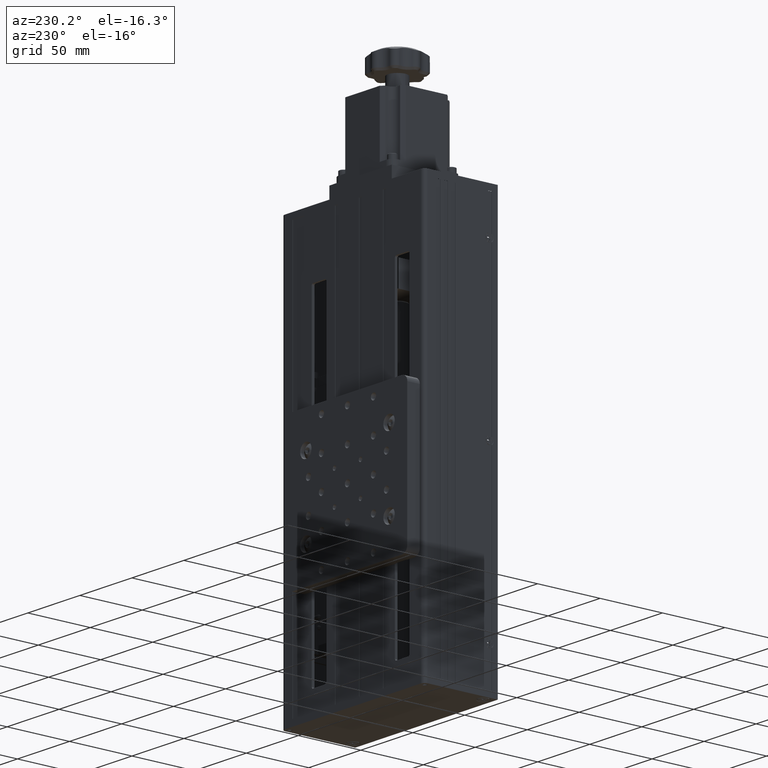
[diagram: clean part render]
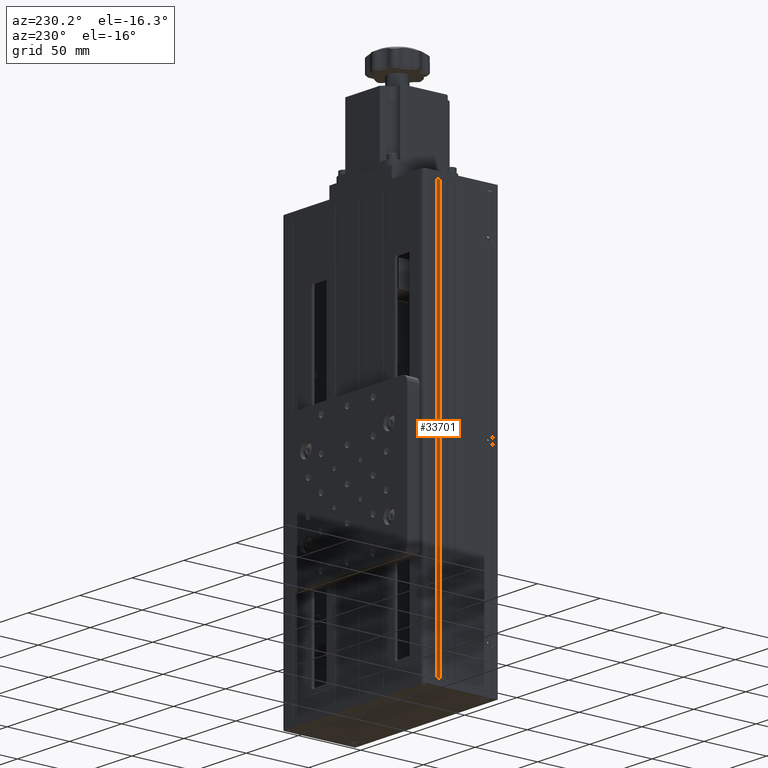
[diagram: same view with one face highlighted and labeled with its STEP entity id]
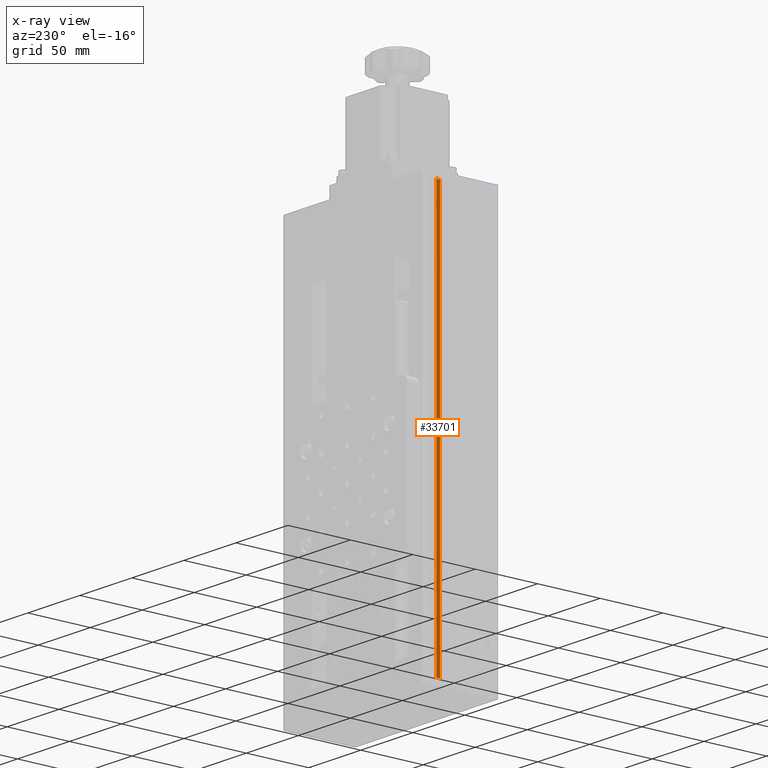
[diagram: x-ray of the same camera — body ghosted, the highlighted face saturated]
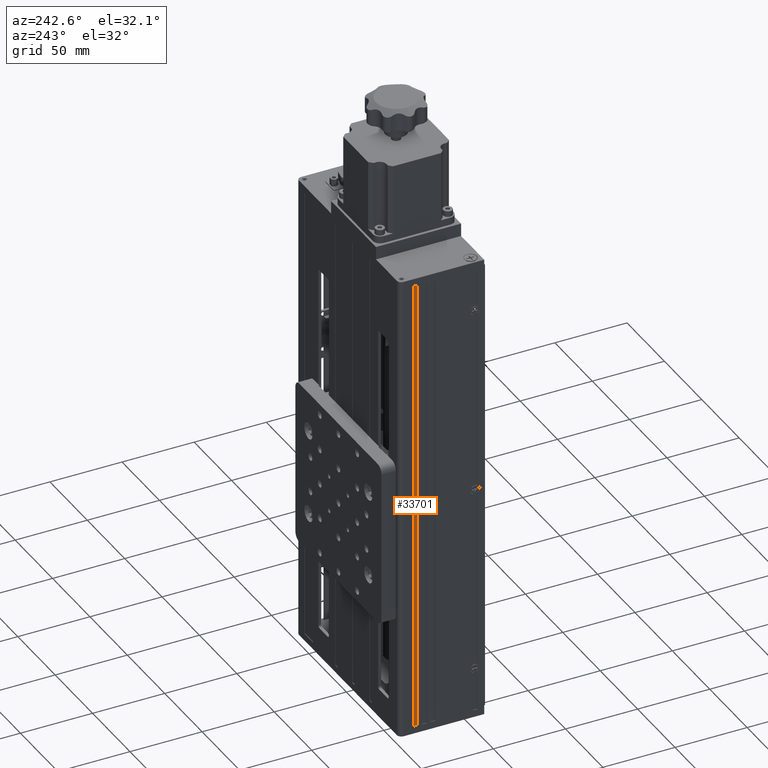
[diagram: same view with one face highlighted and labeled with its STEP entity id]
A machine part, auxiliary view. The second image highlights one B-rep face of the part: STEP entity #33701.
The next image is the same camera in x-ray: the body ghosted, the highlighted face saturated — about 0% of this face is hidden behind the body in this view.
A second angle (auxiliary view) of the same face is appended — the face is thin or edge-on in the first view.
In plain terms, the highlighted planar face has unit normal (-1, 0, 0).
Its self-contained STEP definition (entity closure, byte-faithful):
#1586 = AXIS2_PLACEMENT_3D ( 'NONE', #34981, #15347, #38282 ) ;
#1667 = DIRECTION ( 'NONE',  ( 0.0000000000000000000, 1.000000000000000000, 0.0000000000000000000 ) ) ;
#2867 = FACE_OUTER_BOUND ( 'NONE', #13060, .T. ) ;
#3260 = DIRECTION ( 'NONE',  ( -0.0000000000000000000, -0.0000000000000000000, -1.000000000000000000 ) ) ;
#3447 = ORIENTED_EDGE ( 'NONE', *, *, #23919, .F. ) ;
#5341 = VECTOR ( 'NONE', #1667, 1000.000000000000000 ) ;
#6164 = ORIENTED_EDGE ( 'NONE', *, *, #8153, .T. ) ;
#7999 = VECTOR ( 'NONE', #3260, 1000.000000000000000 ) ;
#8153 = EDGE_CURVE ( 'NONE', #12190, #24620, #26607, .T. ) ;
#11501 = DIRECTION ( 'NONE',  ( -0.0000000000000000000, -0.0000000000000000000, -1.000000000000000000 ) ) ;
#11735 = VECTOR ( 'NONE', #11501, 1000.000000000000000 ) ;
#12190 = VERTEX_POINT ( 'NONE', #30976 ) ;
#13060 = EDGE_LOOP ( 'NONE', ( #23768, #3447, #6164, #42264 ) ) ;
#14508 = CARTESIAN_POINT ( 'NONE',  ( -70.98011670107457900, 37.39557601279238200, -222.7607007065120700 ) ) ;
#15347 = DIRECTION ( 'NONE',  ( -1.000000000000000000, 0.0000000000000000000, 0.0000000000000000000 ) ) ;
#15685 = LINE ( 'NONE', #32588, #7999 ) ;
#16330 = CARTESIAN_POINT ( 'NONE',  ( -70.98011670107457900, 37.39557601279238200, 97.23929929348793200 ) ) ;
#18492 = PLANE ( 'NONE',  #1586 ) ;
#19768 = DIRECTION ( 'NONE',  ( 0.0000000000000000000, 1.000000000000000000, 0.0000000000000000000 ) ) ;
#23768 = ORIENTED_EDGE ( 'NONE', *, *, #32125, .F. ) ;
#23919 = EDGE_CURVE ( 'NONE', #12190, #24226, #15685, .T. ) ;
#24226 = VERTEX_POINT ( 'NONE', #14508 ) ;
#24620 = VERTEX_POINT ( 'NONE', #36376 ) ;
#26607 = LINE ( 'NONE', #16330, #35350 ) ;
#27120 = VERTEX_POINT ( 'NONE', #35330 ) ;
#29151 = LINE ( 'NONE', #37846, #11735 ) ;
#30976 = CARTESIAN_POINT ( 'NONE',  ( -70.98011670107457900, 37.39557601279238200, 97.23929929348793200 ) ) ;
#32125 = EDGE_CURVE ( 'NONE', #24226, #27120, #40188, .T. ) ;
#32588 = CARTESIAN_POINT ( 'NONE',  ( -70.98011670107457900, 37.39557601279238200, 97.23929929348793200 ) ) ;
#33701 = ADVANCED_FACE ( 'NONE', ( #2867 ), #18492, .T. ) ;
#34981 = CARTESIAN_POINT ( 'NONE',  ( -70.98011670107457900, 37.39557601279238200, 97.23929929348793200 ) ) ;
#35330 = CARTESIAN_POINT ( 'NONE',  ( -70.98011670107457900, 40.39557601279239000, -222.7607007065120700 ) ) ;
#35350 = VECTOR ( 'NONE', #19768, 1000.000000000000000 ) ;
#36376 = CARTESIAN_POINT ( 'NONE',  ( -70.98011670107457900, 40.39557601279239000, 97.23929929348793200 ) ) ;
#37126 = EDGE_CURVE ( 'NONE', #24620, #27120, #29151, .T. ) ;
#37846 = CARTESIAN_POINT ( 'NONE',  ( -70.98011670107457900, 40.39557601279239000, 97.23929929348793200 ) ) ;
#38282 = DIRECTION ( 'NONE',  ( 0.0000000000000000000, 0.0000000000000000000, 1.000000000000000000 ) ) ;
#40188 = LINE ( 'NONE', #40897, #5341 ) ;
#40897 = CARTESIAN_POINT ( 'NONE',  ( -70.98011670107457900, 37.39557601279238200, -222.7607007065120700 ) ) ;
#42264 = ORIENTED_EDGE ( 'NONE', *, *, #37126, .T. ) ;